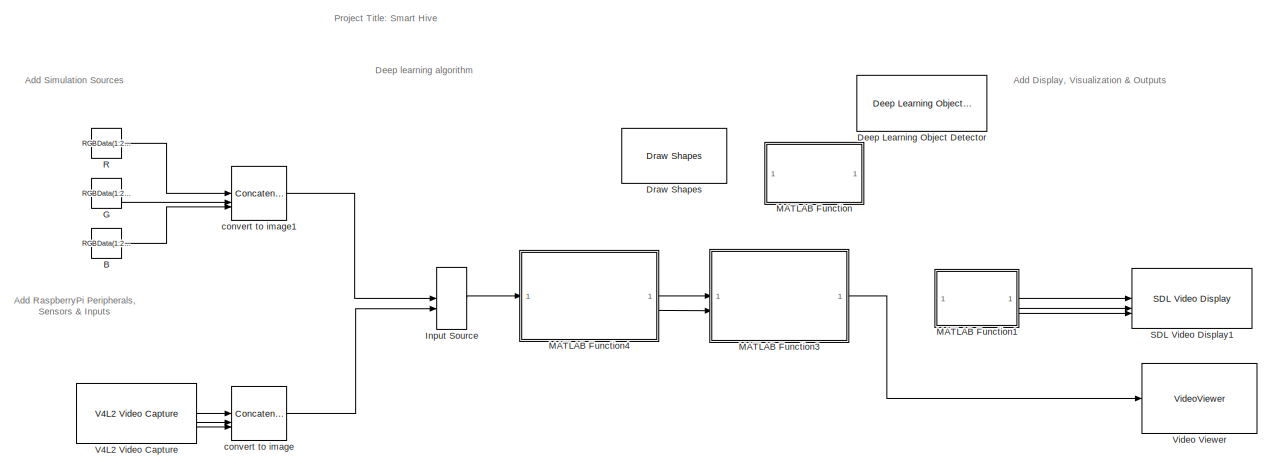
[diagram: root canvas - part 1/2, full width, top band]
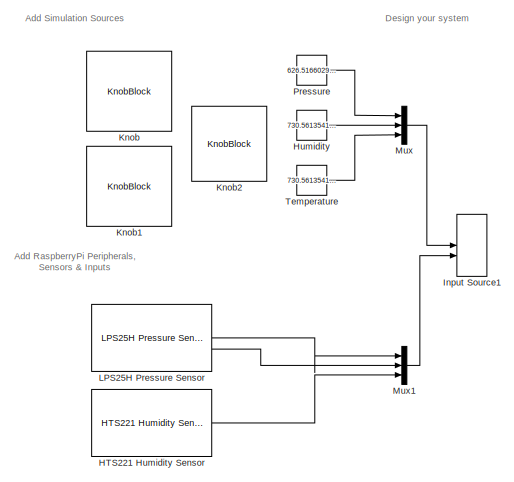
[diagram: root canvas - part 2/2, bottom left region]
MODEL slx_92a31664a062
KIND model
CONFIG AbsTol = auto
CONFIG EnableMultiTasking = on
CONFIG FixedStep = auto
CONFIG MaxStep = auto
CONFIG MinStep = auto
CONFIG RelTol = 1e-3
CONFIG SampleTimeConstraint = Unconstrained
CONFIG SolverName = ode45
CONFIG StartTime = 0.0
CONFIG StopTime = 10.0
WORKSPACE source: mxarray member
WORKSPACE RGBData = [62 63 65 64 60 62 65 62 60 59 59 59 ... (230400 elements, 320x240x3)]
BLOCK [Constant] B
  OutDataTypeStr = uint8
  SampleTime = 0.1
  Value = RGBData(1:224,1:224,3)
BLOCK [Reference] Deep Learning Object Detector  REF=visionanalysis/Deep Learning Object Detector
  Commented = on
  SourceBlock = visionanalysis/Deep Learning Object Detector
  SourceType = Deep Learning Object Detector
BLOCK [Reference] Draw Shapes  REF=visiontextngfix/Draw Shapes
  Commented = on
  SourceBlock = visiontextngfix/Draw Shapes
  SourceType = Draw Shapes
BLOCK [Constant] G
  OutDataTypeStr = uint8
  SampleTime = 0.1
  Value = RGBData(1:224,1:224,2)
BLOCK [Reference] HTS221 Humidity Sensor  REF=sensehatlib/HTS221 Humidity Sensor
  SourceBlock = sensehatlib/HTS221 Humidity Sensor
  SourceType = raspi.internal.hts221Block
BLOCK [Constant] Humidity
  Value = 730.5613541666667
BLOCK [ManualSwitch] Input Source
  CurrentSetting = 0
BLOCK [ManualSwitch] Input Source1
  CurrentSetting = 0
BLOCK [KnobBlock] Knob
  ScaleMax = 1024
BLOCK [KnobBlock] Knob1
  ScaleMax = 1024
BLOCK [KnobBlock] Knob2
  ScaleMax = 1024
BLOCK [Reference] LPS25H Pressure Sensor  REF=sensehatlib/LPS25H Pressure Sensor
  SourceBlock = sensehatlib/LPS25H Pressure Sensor
  SourceType = raspi.internal.lps25hBlock
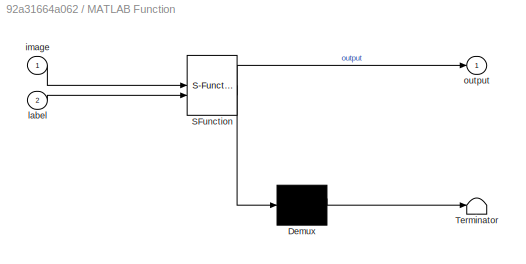
BLOCK [SubSystem] MATLAB Function
  Commented = on
  ErrorFcn = Stateflow.Translate.translate
  LibrarySourceBlock = simulink/User-Defined\nFunctions/MATLAB Function
  PermitHierarchicalResolution = ExplicitOnly
  SFBlockType = MATLAB Function
  TreatAsAtomicUnit = on
BLOCK [Demux] MATLAB Function/ Demux 
  Outputs = 1
BLOCK [S-Function] MATLAB Function/ SFunction 
  EnableBusSupport = on
  FunctionName = sf_sfun
  PortCounts = [2 2]
  SFcnIsStateOwnerBlock = off
  SFunctionDeploymentMode = off
  Tag = Stateflow S-Function 3
BLOCK [Terminator] MATLAB Function/ Terminator 
BLOCK [Inport] MATLAB Function/image
BLOCK [Inport] MATLAB Function/label
  Port = 2
BLOCK [Outport] MATLAB Function/output
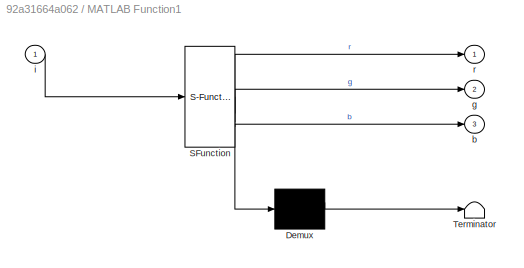
BLOCK [SubSystem] MATLAB Function1
  Commented = on
  ErrorFcn = Stateflow.Translate.translate
  PermitHierarchicalResolution = ExplicitOnly
  SFBlockType = MATLAB Function
  TreatAsAtomicUnit = on
BLOCK [Demux] MATLAB Function1/ Demux 
  Outputs = 1
BLOCK [S-Function] MATLAB Function1/ SFunction 
  EnableBusSupport = on
  FunctionName = sf_sfun
  PortCounts = [1 4]
  SFcnIsStateOwnerBlock = off
  SFunctionDeploymentMode = off
  Tag = Stateflow S-Function 1
BLOCK [Terminator] MATLAB Function1/ Terminator 
BLOCK [Outport] MATLAB Function1/b
  Port = 3
BLOCK [Outport] MATLAB Function1/g
  Port = 2
BLOCK [Inport] MATLAB Function1/i
BLOCK [Outport] MATLAB Function1/r
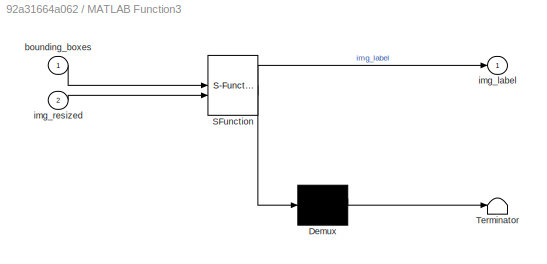
BLOCK [SubSystem] MATLAB Function3
  ErrorFcn = Stateflow.Translate.translate
  LibrarySourceBlock = simulink/User-Defined\nFunctions/MATLAB Function
  PermitHierarchicalResolution = ExplicitOnly
  SFBlockType = MATLAB Function
  TreatAsAtomicUnit = on
BLOCK [Demux] MATLAB Function3/ Demux 
  Outputs = 1
BLOCK [S-Function] MATLAB Function3/ SFunction 
  EnableBusSupport = on
  FunctionName = sf_sfun
  PortCounts = [2 2]
  SFcnIsStateOwnerBlock = off
  SFunctionDeploymentMode = off
  Tag = Stateflow S-Function 5
BLOCK [Terminator] MATLAB Function3/ Terminator 
BLOCK [Inport] MATLAB Function3/bounding_boxes
BLOCK [Outport] MATLAB Function3/img_label
BLOCK [Inport] MATLAB Function3/img_resized
  Port = 2
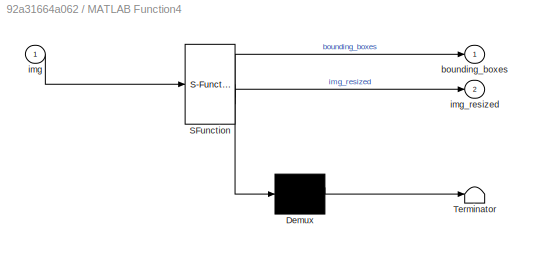
BLOCK [SubSystem] MATLAB Function4
  ErrorFcn = Stateflow.Translate.translate
  LibrarySourceBlock = simulink/User-Defined\nFunctions/MATLAB Function
  PermitHierarchicalResolution = ExplicitOnly
  SFBlockType = MATLAB Function
  TreatAsAtomicUnit = on
  VariantControl = Choice
BLOCK [Demux] MATLAB Function4/ Demux 
  Outputs = 1
BLOCK [S-Function] MATLAB Function4/ SFunction 
  EnableBusSupport = on
  FunctionName = sf_sfun
  PortCounts = [1 3]
  SFcnIsStateOwnerBlock = off
  SFunctionDeploymentMode = off
  Tag = Stateflow S-Function 4
BLOCK [Terminator] MATLAB Function4/ Terminator 
BLOCK [Outport] MATLAB Function4/bounding_boxes
BLOCK [Inport] MATLAB Function4/img
BLOCK [Outport] MATLAB Function4/img_resized
  Port = 2
BLOCK [Mux] Mux
  DisplayOption = bar
  Inputs = 3
BLOCK [Mux] Mux1
  DisplayOption = bar
  Inputs = 3
BLOCK [Constant] Pressure
  Value = 626.516602941941
BLOCK [Constant] R
  OutDataTypeStr = uint8
  OutMin = [224]
  SampleTime = 0.1
  Value = RGBData(1:224,1:224,1)
BLOCK [Reference] SDL Video Display1  REF=raspberrypiAVlib/SDL Video Display
  Commented = on
  SourceBlock = raspberrypiAVlib/SDL Video Display
  SourceType = SDL Video Display
BLOCK [Constant] Temperature
  Value = 730.5613541666667
BLOCK [Reference] V4L2 Video Capture  REF=raspberrypiAVlib/V4L2 Video Capture
  SourceBlock = raspberrypiAVlib/V4L2 Video Capture
  SourceType = codertarget.raspi.internal.Raspiv4l2Capture
BLOCK [VideoViewer] Video Viewer
  FigPos = [2041 741 418 304]
  ScopeSpecificationString = vipscopes.VideoViewerScopeCfg('CurrentConfiguration', extmgr.ConfigurationSet(extmgr.Configuration('Core','General UI',true),extmgr.Configuration('Core','Source UI',true),extmgr.Configuration('Sources','WiredSimulink',true),extmgr.Configuration('Visuals','Video',true),extmgr.Configuration('Tools','Image Navigation Tools',true),extmgr.Configuration('Tools','Image Tool',true),extmgr.Configuration('T...<+76ch>
BLOCK [Concatenate] convert to image
  ConcatenateDimension = 3
  Mode = Multidimensional array
  NumInputs = 3
BLOCK [Concatenate] convert to image1
  ConcatenateDimension = 3
  Mode = Multidimensional array
  NumInputs = 3
ANNOTATION (root): Add Display, Visualization & Outputs
ANNOTATION (root): Add RaspberryPi Peripherals, Sensors & Inputs
ANNOTATION (root): Add Simulation Sources
ANNOTATION (root): Deep learning algorithm
ANNOTATION (root): Design your system
ANNOTATION (root): Project Title: Smart Hive
LINE B:1 -> convert to image1:3
LINE G:1 -> convert to image1:2
LINE HTS221 Humidity Sensor:1 -> Mux1:3
LINE Humidity:1 -> Mux:2
LINE Input Source:1 -> MATLAB Function4:1
LINE LPS25H Pressure Sensor:1 -> Mux1:1
LINE LPS25H Pressure Sensor:2 -> Mux1:2
LINE MATLAB Function1:1 -> SDL Video Display1:1
LINE MATLAB Function1:2 -> SDL Video Display1:2
LINE MATLAB Function1:3 -> SDL Video Display1:3
LINE MATLAB Function3:1 -> Video Viewer:1
LINE MATLAB Function4:1 -> MATLAB Function3:1
LINE MATLAB Function4:2 -> MATLAB Function3:2
LINE Mux1:1 -> Input Source1:2
LINE Mux:1 -> Input Source1:1
LINE Pressure:1 -> Mux:1
LINE R:1 -> convert to image1:1
LINE Temperature:1 -> Mux:3
LINE V4L2 Video Capture:1 -> convert to image:1
LINE V4L2 Video Capture:2 -> convert to image:2
LINE V4L2 Video Capture:3 -> convert to image:3
LINE convert to image1:1 -> Input Source:1
LINE convert to image:1 -> Input Source:2
CHART MATLAB Function1 states=1 transitions=1
  STATE_LABEL 'eML_blk_kernel()'
  STATE_LABEL 'SCRIPT:\nfunction [r,g,b] = ImageToRGB(i)\n%#codegen\nr =i(:,:,1);\ng =i(:,:,2);\nb =i(:,:,3);\nend'
CHART MATLAB Function states=1 transitions=1
  STATE_LABEL 'eML_blk_kernel()'
  STATE_LABEL 'SCRIPT:\n\nfunction output = addLabel(image,label)\n%#codegen\nlabel_str = cellstr(label);\ntext2display = sprintf("Label : %s \\nScore: %f", label_str{:}, max_score);\n% Para la generación de código, text2display necesita ser de tipo cell\n% en vez de string\n%ctext2display = cellstr(text2display);\n% Insertamos en img, en la posición 0,0, el texto previamente calculado\noutput = insertText(image, [0,0], te...<+16ch>'
CHART MATLAB Function4 states=1 transitions=1
  STATE_LABEL 'eML_blk_kernel()'
  STATE_LABEL 'SCRIPT:\nfunction [bounding_boxes,img_resized] = detectorYOLO(img)\n\ninput_size = [224,224,3];\n\ndetector = coder.loadDeepLearningNetwork("<userpath>\\My Documents<path>");\nbounding_boxes = detect(detector,img);\n\n% Si no es vacío, es decir, ha detectado alguna cara.\nif ~isempty(bounding_boxes)\n    % La recortamos para solo quedarnos con la car...<+363ch>'
CHART MATLAB Function3 states=1 transitions=1
  STATE_LABEL 'eML_blk_kernel()'
  STATE_LABEL 'SCRIPT:\nfunction img_label = classification(bounding_boxes,img_resized)\n\nnet = coder.loadDeepLearningNetwork("./SAVED_OBJECTS/net.mat");\n\n% Clasificamos la imagen\n[label,score] = net.classify(img_resized);\nmax_score = max(score);\n\n%label_str = cellstr(label);\ntext2display = sprintf("Label : %s \\nScore: %f", label, max_score);\n\nimg_label = insertText(img, [0,0], text2display);\n% Actualizamos el cua...<+182ch>'
CHART  states=0 transitions=0
CHART  states=0 transitions=0
CHART  states=0 transitions=0
CHART  states=0 transitions=0
note: 1 file-system path scrubbed to <path> (not preserved elsewhere — flat text is the only slx artifact)
